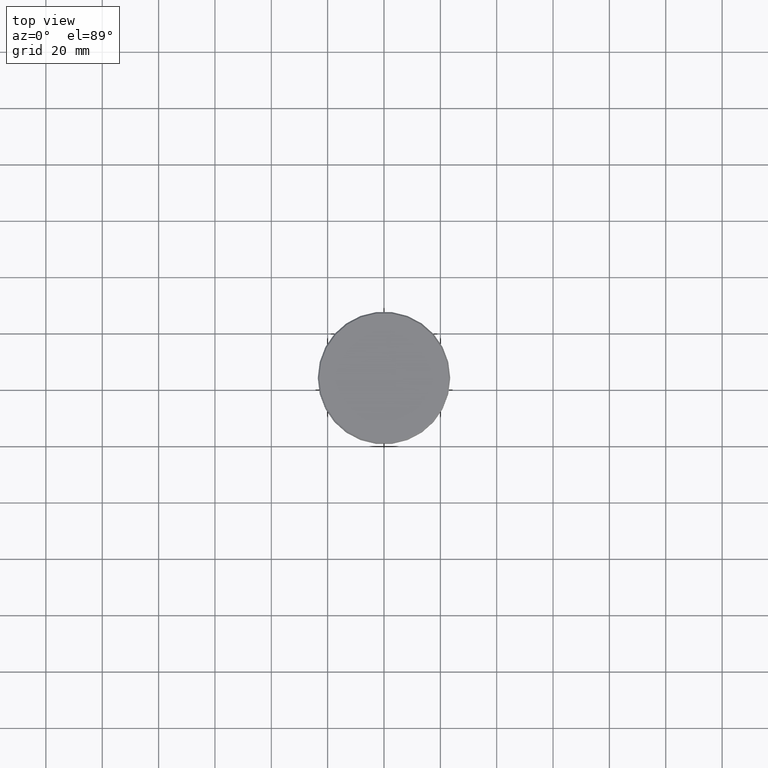
[diagram: clean part render]
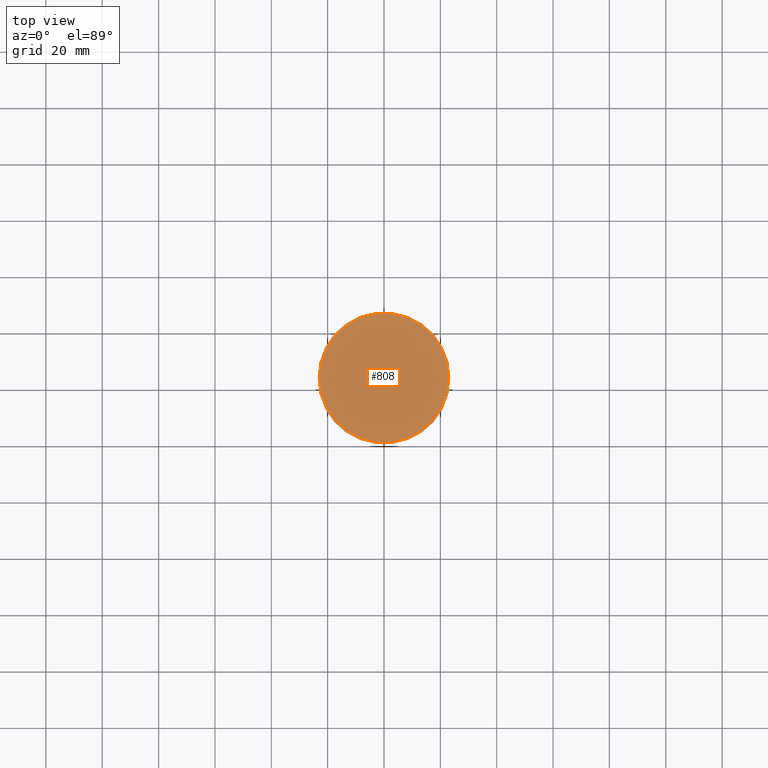
[diagram: same view with one face highlighted and labeled with its STEP entity id]
A machine part, top view. The second image highlights one B-rep face of the part: STEP entity #808.
In plain terms, the highlighted planar face has unit normal (0, -0, 1).
Its self-contained STEP definition (entity closure, byte-faithful):
#42 = DIRECTION ( 'NONE',  ( 1.000000000000000000, 0.000000000000000000, 0.000000000000000000 ) ) ;
#105 = AXIS2_PLACEMENT_3D ( 'NONE', #147, #487, #135 ) ;
#135 = DIRECTION ( 'NONE',  ( 1.000000000000000000, 0.000000000000000000, 0.000000000000000000 ) ) ;
#147 = CARTESIAN_POINT ( 'NONE',  ( 0.000000000000000000, 0.000000000000000000, 0.000000000000000000 ) ) ;
#175 = ORIENTED_EDGE ( 'NONE', *, *, #299, .T. ) ;
#224 = DIRECTION ( 'NONE',  ( 0.000000000000000000, -0.000000000000000000, 1.000000000000000000 ) ) ;
#243 = DIRECTION ( 'NONE',  ( -0.000000000000000000, -0.000000000000000000, 1.000000000000000000 ) ) ;
#262 = AXIS2_PLACEMENT_3D ( 'NONE', #961, #243, #404 ) ;
#280 = EDGE_CURVE ( 'NONE', #611, #636, #853, .T. ) ;
#299 = EDGE_CURVE ( 'NONE', #636, #611, #776, .T. ) ;
#334 = CARTESIAN_POINT ( 'NONE',  ( 0.000000000000000000, 0.000000000000000000, 0.000000000000000000 ) ) ;
#404 = DIRECTION ( 'NONE',  ( 1.000000000000000000, 0.000000000000000000, 0.000000000000000000 ) ) ;
#487 = DIRECTION ( 'NONE',  ( -0.000000000000000000, -0.000000000000000000, 1.000000000000000000 ) ) ;
#611 = VERTEX_POINT ( 'NONE', #1092 ) ;
#636 = VERTEX_POINT ( 'NONE', #1011 ) ;
#776 = CIRCLE ( 'NONE', #262, 23.00000000000005329 ) ;
#808 = ADVANCED_FACE ( 'NONE', ( #849 ), #1147, .T. ) ;
#849 = FACE_OUTER_BOUND ( 'NONE', #1102, .T. ) ;
#853 = CIRCLE ( 'NONE', #105, 23.00000000000005329 ) ;
#961 = CARTESIAN_POINT ( 'NONE',  ( 0.000000000000000000, 0.000000000000000000, 0.000000000000000000 ) ) ;
#1011 = CARTESIAN_POINT ( 'NONE',  ( 23.00000000000005329, 2.847303808017599689E-15, 0.000000000000000000 ) ) ;
#1092 = CARTESIAN_POINT ( 'NONE',  ( -23.00000000000005329, 0.000000000000000000, 0.000000000000000000 ) ) ;
#1102 = EDGE_LOOP ( 'NONE', ( #1136, #175 ) ) ;
#1103 = AXIS2_PLACEMENT_3D ( 'NONE', #334, #224, #42 ) ;
#1136 = ORIENTED_EDGE ( 'NONE', *, *, #280, .T. ) ;
#1147 = PLANE ( 'NONE',  #1103 ) ;